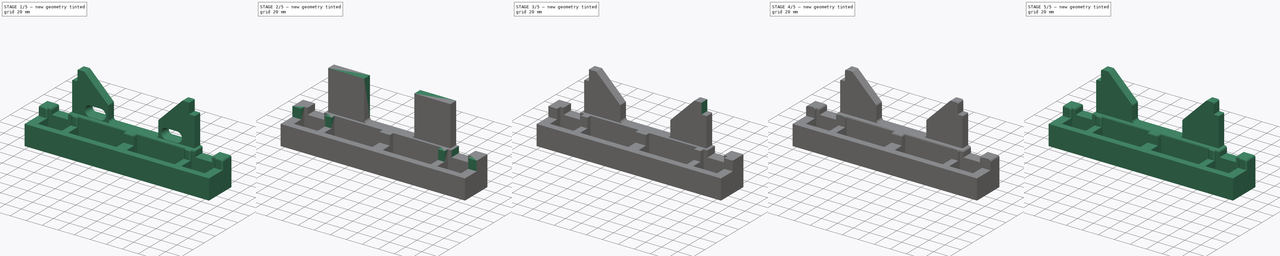
[diagram: build sequence overview — one tinted view per stage of 5, left to right]
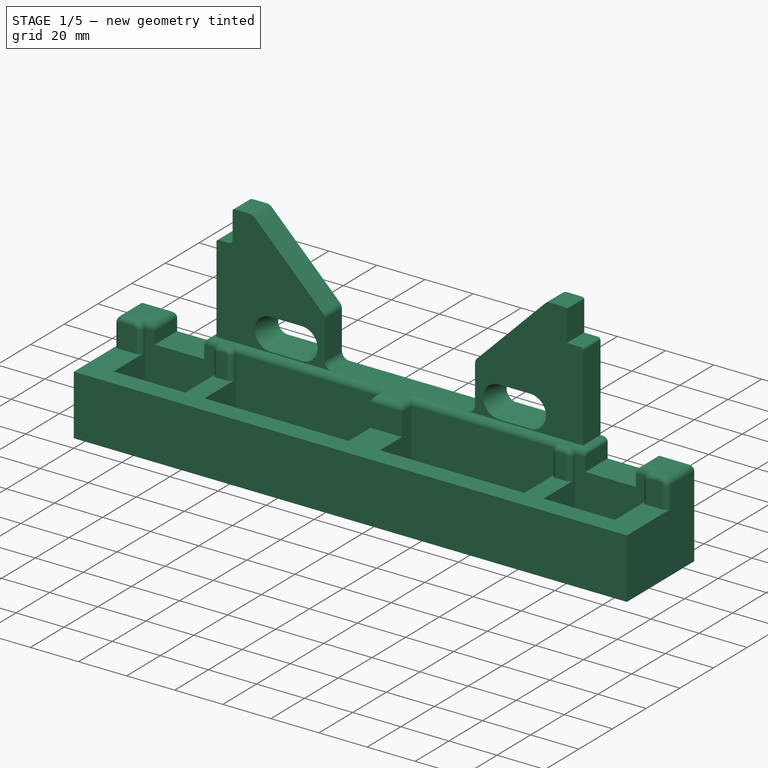
[diagram: stage 1 of 5 — iso view after this stage's code; geometry added in this stage tinted green]
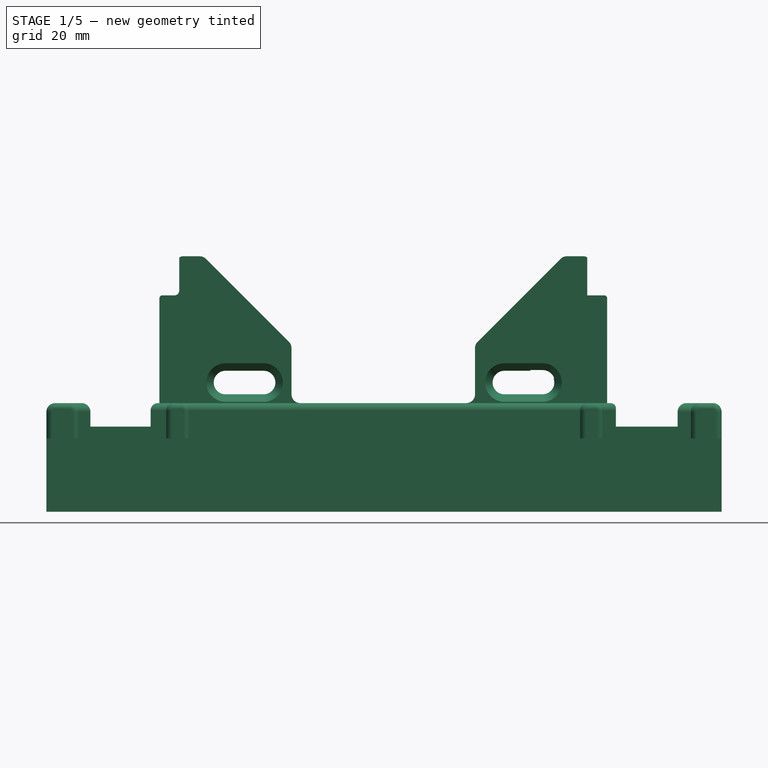
[diagram: stage 1 of 5 — front view after this stage's code; geometry added in this stage tinted green]
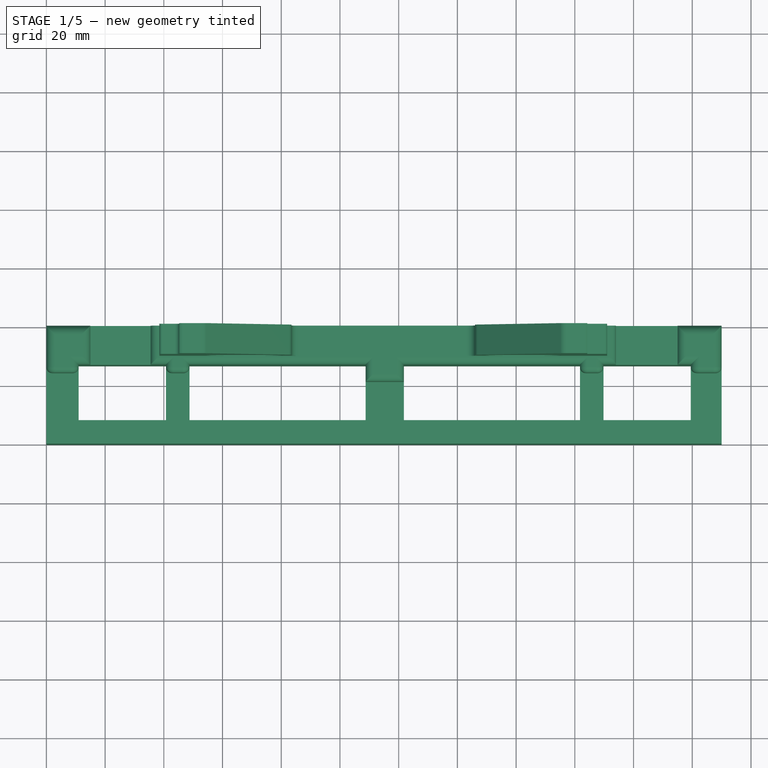
[diagram: stage 1 of 5 — top view after this stage's code; geometry added in this stage tinted green]
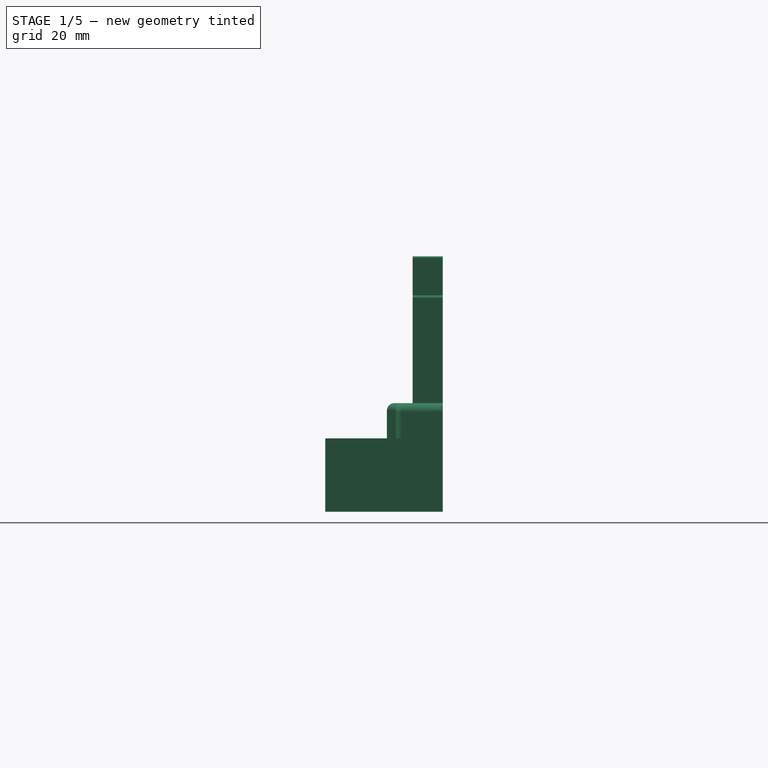
[diagram: stage 1 of 5 — right view after this stage's code; geometry added in this stage tinted green]
FCSTD DOCUMENT  (FreeCAD 0.16R5861 (Git))
Label: y_alignment_jig_v0.9.7
License: CreativeCommons Attribution-ShareAlike
LicenseURL: http://creativecommons.org/licenses/by-sa/4.0/
objects: Sketcher::SketchObject×10, PartDesign::Fillet×10, PartDesign::Pocket×8, PartDesign::Pad×2, PartDesign::Chamfer×1, Part::Feature×1, PartDesign::Draft×1
note: 43 computed .brp shape members not serialized (recipe doc carries the construction recipe); baked Part::Feature solids carry a one-line shape summary decoded from their .brp

FEATURE [Part::Feature] Fillet008001  label="Fillet009"
  shape: bbox 230 x 40 x 87 mm, 107 faces (baked)
FEATURE [Sketcher::SketchObject] Sketch008
  ExternalGeometry = -> [Fillet008001]
  Placement = pos=(0,40,0) rot=(0,0.707107,0.707107;3.14159rad)
  Support = -> Fillet008001 [Face102]
  sketch-geometry (8):
    g0: ArcOfCircle CenterX=-169 CenterY=44 CenterZ=0 NormalX=0 NormalY=0 NormalZ=1 Radius=4 StartAngle=1.5708 EndAngle=4.71239
    g1: ArcOfCircle CenterX=-156 CenterY=44 CenterZ=0 NormalX=0 NormalY=0 NormalZ=1 Radius=4 StartAngle=4.71239 EndAngle=7.85398
    g2: LineSegment StartX=-169 StartY=40 StartZ=0 EndX=-156 EndY=40 EndZ=0
    g3: LineSegment StartX=-169 StartY=48 StartZ=0 EndX=-156 EndY=48 EndZ=0
    g4: ArcOfCircle CenterX=-74 CenterY=44 CenterZ=0 NormalX=0 NormalY=0 NormalZ=1 Radius=4 StartAngle=1.5708 EndAngle=4.71239
    g5: ArcOfCircle CenterX=-61 CenterY=44 CenterZ=0 NormalX=0 NormalY=0 NormalZ=1 Radius=4 StartAngle=4.71239 EndAngle=7.85398
    g6: LineSegment StartX=-74 StartY=40 StartZ=0 EndX=-61 EndY=40 EndZ=0
    g7: LineSegment StartX=-74 StartY=48 StartZ=0 EndX=-61 EndY=48 EndZ=0
  constraints (20):
    c: Tangent(g0,g3) = 1.5708
    c: Tangent(g0,g2) = -1.5708
    c: Tangent(g2,g1) = -1.5708
    c: Tangent(g3,g1) = 1.5708
    c: Horizontal(g2)
    c: Equal(g0,g1)
    c: Tangent(g4,g7) = 1.5708
    c: Tangent(g4,g6) = -1.5708
    c: Tangent(g6,g5) = -1.5708
    c: Tangent(g7,g5) = 1.5708
    c: Horizontal(g6)
    c: Equal(g4,g5)
    c: DistanceX(g-1,g5) = -61
    c: DistanceX(g0,g-3) = -61
    c: DistanceX(g0,g1) = 13
    c: DistanceX(g4,g5) = 13
    c: DistanceY(g0,g-3) = -40
    c: DistanceY(g1,g1) = 8
    c: DistanceY(g4,g4) = -8
    c: DistanceY(g-1,g5) = 40
FEATURE [PartDesign::Pocket] Pocket006
  Length = 5
  Sketch = -> Sketch008
  Type = 1
FEATURE [PartDesign::Draft] Draft
  Angle = 14
  Base = -> Pocket006 [Face66,Face70]
  NeutralPlane = -> Pocket006 [Face11]
FEATURE [Sketcher::SketchObject] Sketch009
  ExternalGeometry = -> [Draft]
  Placement = pos=(0,40,0) rot=(0,0.707107,0.707107;3.14159rad)
  Support = -> Draft [Face11]
  sketch-geometry (12):
    g0: LineSegment StartX=-194.5 StartY=37 StartZ=0 EndX=-194 EndY=37 EndZ=0
    g1: LineSegment StartX=-194 StartY=37 StartZ=0 EndX=-194 EndY=29 EndZ=0
    g2: LineSegment StartX=-194 StartY=29 StartZ=0 EndX=-194.5 EndY=29 EndZ=0
    g3: LineSegment StartX=-194.5 StartY=29 StartZ=0 EndX=-194.5 EndY=37 EndZ=0
    g4: LineSegment StartX=-185 StartY=87 StartZ=0 EndX=-184.25 EndY=87 EndZ=0
    g5: LineSegment StartX=-184.25 StartY=87 StartZ=0 EndX=-184.25 EndY=73.7 EndZ=0
    g6: LineSegment StartX=-184.25 StartY=73.7 StartZ=0 EndX=-185 EndY=73.7 EndZ=0
    g7: LineSegment StartX=-185 StartY=73.7 StartZ=0 EndX=-185 EndY=87 EndZ=0
    g8: LineSegment StartX=-45.25 StartY=87 StartZ=0 EndX=-44.5 EndY=87 EndZ=0
    g9: LineSegment StartX=-44.5 StartY=87 StartZ=0 EndX=-44.5 EndY=73.7 EndZ=0
    g10: LineSegment StartX=-44.5 StartY=73.7 StartZ=0 EndX=-45.25 EndY=73.7 EndZ=0
    g11: LineSegment StartX=-45.25 StartY=73.7 StartZ=0 EndX=-45.25 EndY=87 EndZ=0
  constraints (35):
    c: Coincident(g0,g1)
    c: Coincident(g1,g2)
    c: Coincident(g2,g3)
    c: Coincident(g3,g0)
    c: Horizontal(g0)
    c: Horizontal(g2)
    c: Vertical(g1)
    c: Vertical(g3)
    c: DistanceX(g0,g0) = -0.5
    c: Coincident(g2,g-4)
    c: DistanceY(g-3,g0) = 0
    c: Coincident(g4,g5)
    c: Coincident(g5,g6)
    c: Coincident(g6,g7)
    c: Coincident(g7,g4)
    c: Horizontal(g4)
    c: Horizontal(g6)
    c: Vertical(g5)
    c: Vertical(g7)
    c: Coincident(g8,g9)
    c: Coincident(g9,g10)
    c: Coincident(g10,g11)
    c: Coincident(g11,g8)
    c: Horizontal(g8)
    c: Horizontal(g10)
    c: Vertical(g9)
    c: Vertical(g11)
    c: PointOnObject(g-7,g8)
    c: PointOnObject(g-6,g4)
    c: PointOnObject(g-5,g6)
    c: PointOnObject(g-8,g10)
    c: Coincident(g6,g-5)
    c: Coincident(g9,g-8)
    c: DistanceX(g5,g6) = -0.75
    c: DistanceX(g10,g9) = 0.75
FEATURE [PartDesign::Pocket] Pocket007
  Length = 5
  Sketch = -> Sketch009
  Type = 1
FEATURE [PartDesign::Fillet] Fillet008002
  Base = -> Pocket007 [Edge185,Edge43,Edge228]
  Radius = 1.6
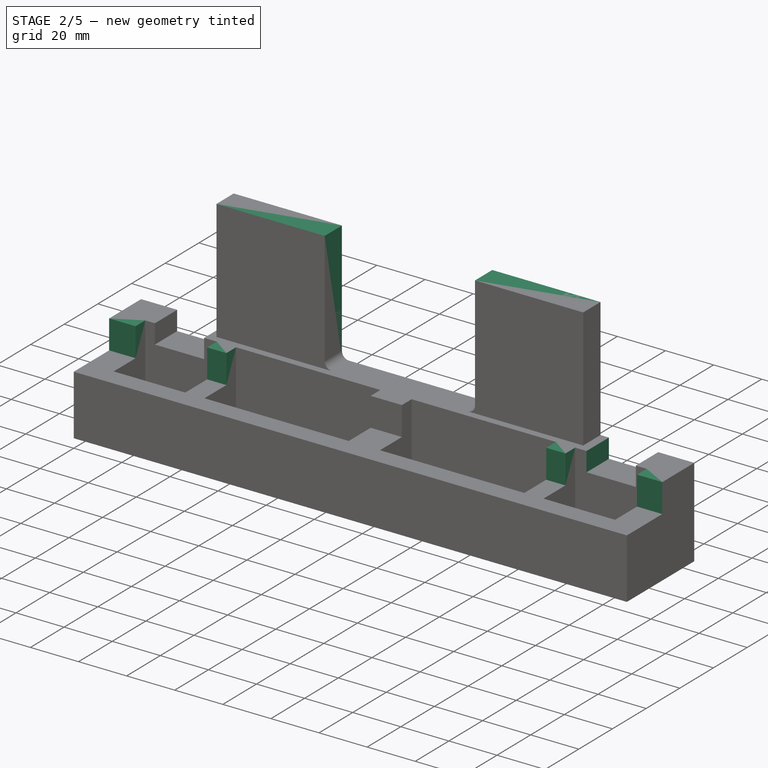
[diagram: stage 2 of 5 — iso view after this stage's code; geometry added in this stage tinted green]
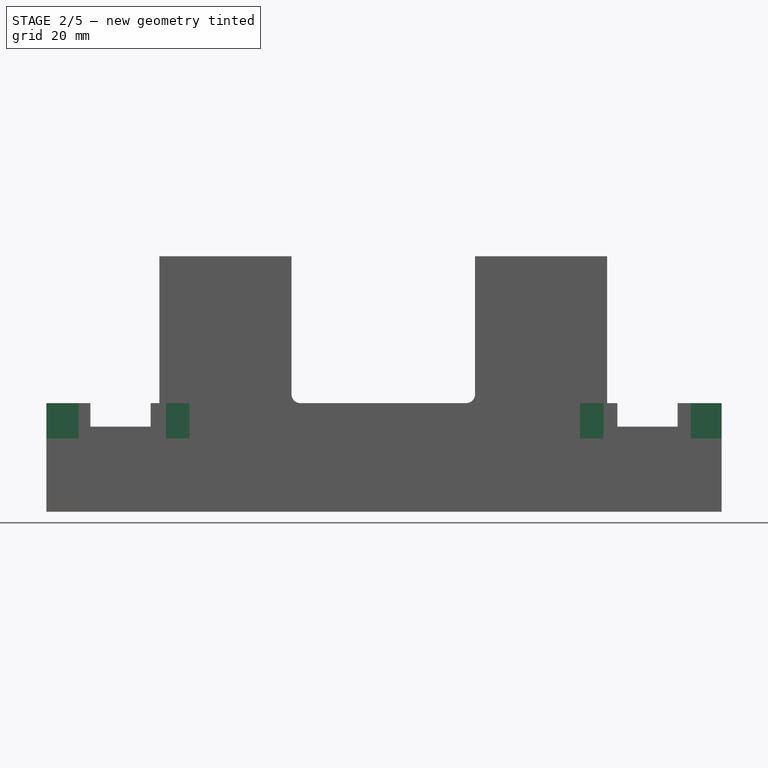
[diagram: stage 2 of 5 — front view after this stage's code; geometry added in this stage tinted green]
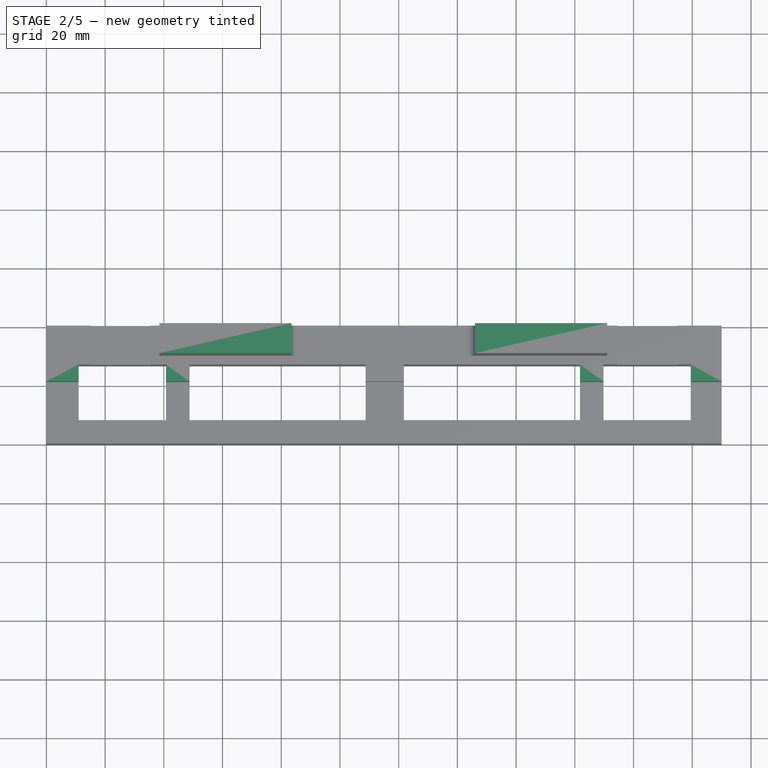
[diagram: stage 2 of 5 — top view after this stage's code; geometry added in this stage tinted green]
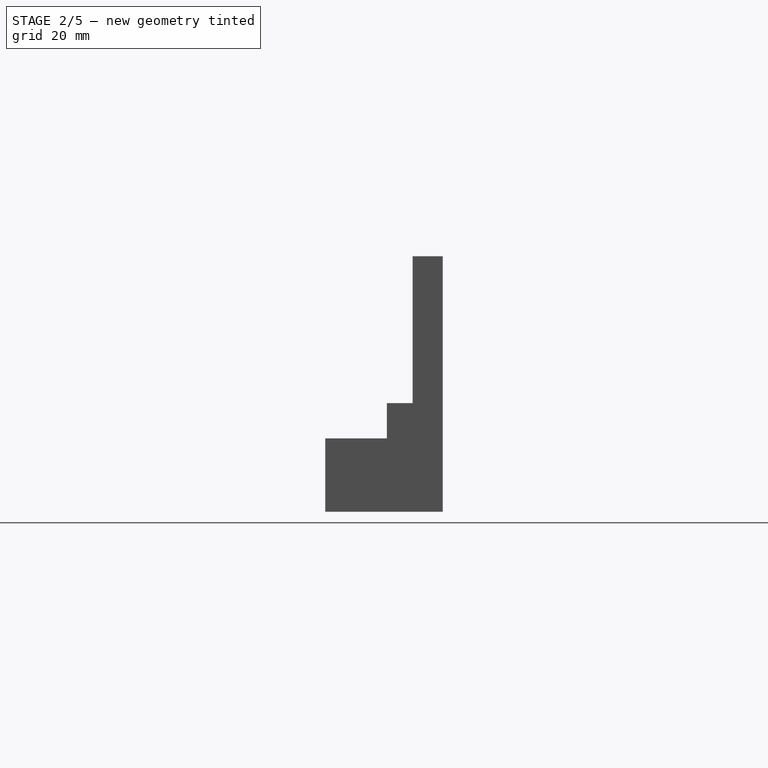
[diagram: stage 2 of 5 — right view after this stage's code; geometry added in this stage tinted green]
FEATURE [Sketcher::SketchObject] Sketch  label="main pad dwg"
  sketch-geometry (4):
    g0: LineSegment StartX=0 StartY=0 StartZ=0 EndX=230 EndY=0 EndZ=0
    g1: LineSegment StartX=230 StartY=0 StartZ=0 EndX=230 EndY=40 EndZ=0
    g2: LineSegment StartX=230 StartY=40 StartZ=0 EndX=0 EndY=40 EndZ=0
    g3: LineSegment StartX=0 StartY=40 StartZ=0 EndX=0 EndY=0 EndZ=0
  constraints (11):
    c: Coincident(g0,g1)
    c: Coincident(g1,g2)
    c: Coincident(g2,g3)
    c: Coincident(g3,g0)
    c: Horizontal(g0)
    c: Horizontal(g2)
    c: Vertical(g1)
    c: Vertical(g3)
    c: Coincident(g0,g-1)
    c: DistanceX(g0) = 230
    c: DistanceY(g3) = -40
FEATURE [PartDesign::Pad] Pad  label="main Pad"
  Length = 37
  Length2 = 100
  Sketch = -> Sketch
  Type = 0
FEATURE [Sketcher::SketchObject] Sketch001  label="foot relief dwg"
  Placement = pos=(0,0,37) rot=(0,0,1;0rad)
  Support = -> Pad [Face6]
  sketch-geometry (16):
    g0: LineSegment StartX=11 StartY=26.75 StartZ=0 EndX=40.75 EndY=26.75 EndZ=0
    g1: LineSegment StartX=40.75 StartY=26.75 StartZ=0 EndX=40.75 EndY=8 EndZ=0
    g2: LineSegment StartX=40.75 StartY=8 StartZ=0 EndX=11 EndY=8 EndZ=0
    g3: LineSegment StartX=11 StartY=8 StartZ=0 EndX=11 EndY=26.75 EndZ=0
    g4: LineSegment StartX=48.75 StartY=26.75 StartZ=0 EndX=108.75 EndY=26.75 EndZ=0
    g5: LineSegment StartX=108.75 StartY=26.75 StartZ=0 EndX=108.75 EndY=8 EndZ=0
    g6: LineSegment StartX=108.75 StartY=8 StartZ=0 EndX=48.75 EndY=8 EndZ=0
    g7: LineSegment StartX=48.75 StartY=8 StartZ=0 EndX=48.75 EndY=26.75 EndZ=0
    g8: LineSegment StartX=121.75 StartY=26.75 StartZ=0 EndX=181.75 EndY=26.75 EndZ=0
    g9: LineSegment StartX=181.75 StartY=26.75 StartZ=0 EndX=181.75 EndY=8 EndZ=0
    g10: LineSegment StartX=181.75 StartY=8 StartZ=0 EndX=121.75 EndY=8 EndZ=0
    g11: LineSegment StartX=121.75 StartY=8 StartZ=0 EndX=121.75 EndY=26.75 EndZ=0
    g12: LineSegment StartX=189.75 StartY=26.75 StartZ=0 EndX=219.5 EndY=26.75 EndZ=0
    g13: LineSegment StartX=219.5 StartY=26.75 StartZ=0 EndX=219.5 EndY=8 EndZ=0
    g14: LineSegment StartX=219.5 StartY=8 StartZ=0 EndX=189.75 EndY=8 EndZ=0
    g15: LineSegment StartX=189.75 StartY=8 StartZ=0 EndX=189.75 EndY=26.75 EndZ=0
  constraints (48):
    c: Coincident(g0,g1)
    c: Coincident(g1,g2)
    c: Coincident(g2,g3)
    c: Coincident(g3,g0)
    c: Horizontal(g0)
    c: Horizontal(g2)
    c: Vertical(g1)
    c: Vertical(g3)
    c: Coincident(g4,g5)
    c: Coincident(g5,g6)
    c: Coincident(g6,g7)
    c: Coincident(g7,g4)
    c: Horizontal(g4)
    c: Horizontal(g6)
    c: Vertical(g5)
    c: Vertical(g7)
    c: Coincident(g8,g9)
    c: Coincident(g9,g10)
    c: Coincident(g10,g11)
    c: Coincident(g11,g8)
    c: Horizontal(g8)
    c: Horizontal(g10)
    c: Vertical(g9)
    c: Vertical(g11)
    c: Coincident(g12,g13)
    c: Coincident(g13,g14)
    c: Coincident(g14,g15)
    c: Coincident(g15,g12)
    c: Horizontal(g12)
    c: Horizontal(g14)
    c: Vertical(g13)
    c: Vertical(g15)
    c: DistanceX(g-1,g2) = 11
    c: DistanceY(g-1,g2) = 8
    c: DistanceX(g2) = -29.75
    c: DistanceY(g3) = 18.75
    c: DistanceY(g6,g1) = 0
    c: DistanceY(g5,g10) = 0
    c: DistanceY(g9,g14) = 0
    c: DistanceX(g6) = -60
    c: DistanceX(g10) = -60
    c: DistanceX(g14) = -29.75
    c: DistanceX(g6,g1) = -8
    c: DistanceX(g9,g14) = 8
    c: DistanceX(g10,g5) = -13
    c: DistanceY(g4,g0) = 0
    c: DistanceY(g4,g8) = 0
    c: DistanceY(g8,g12) = 0
FEATURE [PartDesign::Pocket] Pocket  label="foot relief Pocket"
  Length = 5
  Sketch = -> Sketch001
  Type = 1
FEATURE [Sketcher::SketchObject] Sketch002  label="end plate relief dwg"
  Placement = pos=(230,0,0) rot=(0.57735,0.57735,0.57735;2.0944rad)
  Support = -> Pocket [Face3]
  sketch-geometry (4):
    g0: LineSegment StartX=0 StartY=37 StartZ=0 EndX=21 EndY=37 EndZ=0
    g1: LineSegment StartX=21 StartY=37 StartZ=0 EndX=21 EndY=25 EndZ=0
    g2: LineSegment StartX=21 StartY=25 StartZ=0 EndX=0 EndY=25 EndZ=0
    g3: LineSegment StartX=0 StartY=25 StartZ=0 EndX=0 EndY=37 EndZ=0
  constraints (12):
    c: Coincident(g0,g1)
    c: Coincident(g1,g2)
    c: Coincident(g2,g3)
    c: Coincident(g3,g0)
    c: Horizontal(g0)
    c: Horizontal(g2)
    c: Vertical(g1)
    c: Vertical(g3)
    c: PointOnObject(g0,g-2)
    c: DistanceY(g3) = 12
    c: DistanceX(g0) = 21
    c: DistanceY(g-1,g2) = 25
FEATURE [PartDesign::Pocket] Pocket001  label="end plate relief"
  Length = 5
  Sketch = -> Sketch002
  Type = 1
FEATURE [Sketcher::SketchObject] Sketch003  label="alum. strut relief dwg"
  Placement = pos=(0,0,37) rot=(0,0,1;0rad)
  Support = -> Pocket001 [Face23]
  sketch-geometry (8):
    g0: LineSegment StartX=15 StartY=40 StartZ=0 EndX=35.5 EndY=40 EndZ=0
    g1: LineSegment StartX=35.5 StartY=40 StartZ=0 EndX=35.5 EndY=26.75 EndZ=0
    g2: LineSegment StartX=35.5 StartY=26.75 StartZ=0 EndX=15 EndY=26.75 EndZ=0
    g3: LineSegment StartX=15 StartY=26.75 StartZ=0 EndX=15 EndY=40 EndZ=0
    g4: LineSegment StartX=194.5 StartY=26.75 StartZ=0 EndX=215 EndY=26.75 EndZ=0
    g5: LineSegment StartX=215 StartY=26.75 StartZ=0 EndX=215 EndY=40 EndZ=0
    g6: LineSegment StartX=215 StartY=40 StartZ=0 EndX=194.5 EndY=40 EndZ=0
    g7: LineSegment StartX=194.5 StartY=40 StartZ=0 EndX=194.5 EndY=26.75 EndZ=0
  constraints (24):
    c: Coincident(g0,g1)
    c: Coincident(g1,g2)
    c: Coincident(g2,g3)
    c: Coincident(g3,g0)
    c: Horizontal(g0)
    c: Horizontal(g2)
    c: Vertical(g1)
    c: Vertical(g3)
    c: Coincident(g4,g5)
    c: Coincident(g5,g6)
    c: Coincident(g6,g7)
    c: Coincident(g7,g4)
    c: Horizontal(g4)
    c: Horizontal(g6)
    c: Vertical(g5)
    c: Vertical(g7)
    c: DistanceX(g-1,g0) = 15
    c: DistanceY(g3) = 13.25
    c: DistanceY(g-1,g2) = 26.75
    c: DistanceX(g0) = 20.5
    c: DistanceX(g6) = -20.5
    c: DistanceY(g4,g1) = 0
    c: DistanceX(g6,g0) = -159
    c: DistanceY(g5) = 13.25
FEATURE [PartDesign::Pocket] Pocket002  label="alum. strut relief"
  Length = 8
  Sketch = -> Sketch003
  Type = 0
FEATURE [Sketcher::SketchObject] Sketch004  label="guide rod support dwg"
  Placement = pos=(0,0,37) rot=(0,0,1;0rad)
  Support = -> Pocket002 [Face33]
  sketch-geometry (8):
    g0: LineSegment StartX=38.5 StartY=40 StartZ=0 EndX=83.5 EndY=40 EndZ=0
    g1: LineSegment StartX=83.5 StartY=40 StartZ=0 EndX=83.5 EndY=29.75 EndZ=0
    g2: LineSegment StartX=83.5 StartY=29.75 StartZ=0 EndX=38.5 EndY=29.75 EndZ=0
    g3: LineSegment StartX=38.5 StartY=29.75 StartZ=0 EndX=38.5 EndY=40 EndZ=0
    g4: LineSegment StartX=146 StartY=40 StartZ=0 EndX=191 EndY=40 EndZ=0
    g5: LineSegment StartX=191 StartY=40 StartZ=0 EndX=191 EndY=29.75 EndZ=0
    g6: LineSegment StartX=191 StartY=29.75 StartZ=0 EndX=146 EndY=29.75 EndZ=0
    g7: LineSegment StartX=146 StartY=29.75 StartZ=0 EndX=146 EndY=40 EndZ=0
  constraints (24):
    c: Coincident(g0,g1)
    c: Coincident(g1,g2)
    c: Coincident(g2,g3)
    c: Coincident(g3,g0)
    c: Horizontal(g0)
    c: Horizontal(g2)
    c: Vertical(g1)
    c: Vertical(g3)
    c: Coincident(g4,g5)
    c: Coincident(g5,g6)
    c: Coincident(g6,g7)
    c: Coincident(g7,g4)
    c: Horizontal(g4)
    c: Horizontal(g6)
    c: Vertical(g5)
    c: Vertical(g7)
    c: DistanceX(g0) = 45
    c: DistanceY(g4,g0) = 0
    c: DistanceX(g4,g4) = -45
    c: DistanceX(g4,g0) = -62.5
    c: DistanceY(g3) = 10.25
    c: DistanceY(g-1,g2) = 29.75
    c: DistanceY(g5) = -10.25
    c: DistanceX(g-1,g0) = 38.5
FEATURE [PartDesign::Pad] Pad001  label="guide rod support"
  Length = 50
  Length2 = 100
  Sketch = -> Sketch004
  Type = 0
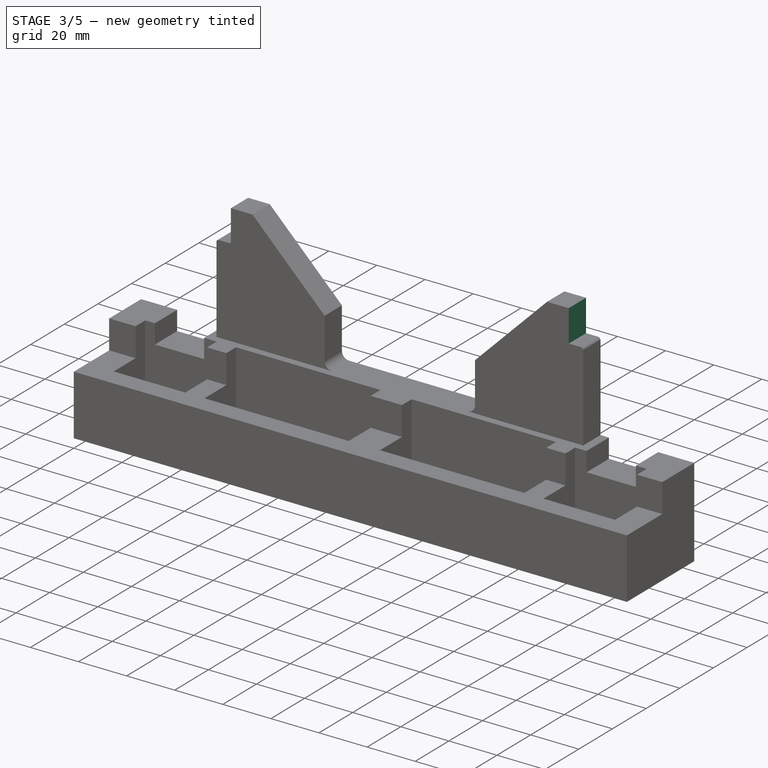
[diagram: stage 3 of 5 — iso view after this stage's code; geometry added in this stage tinted green]
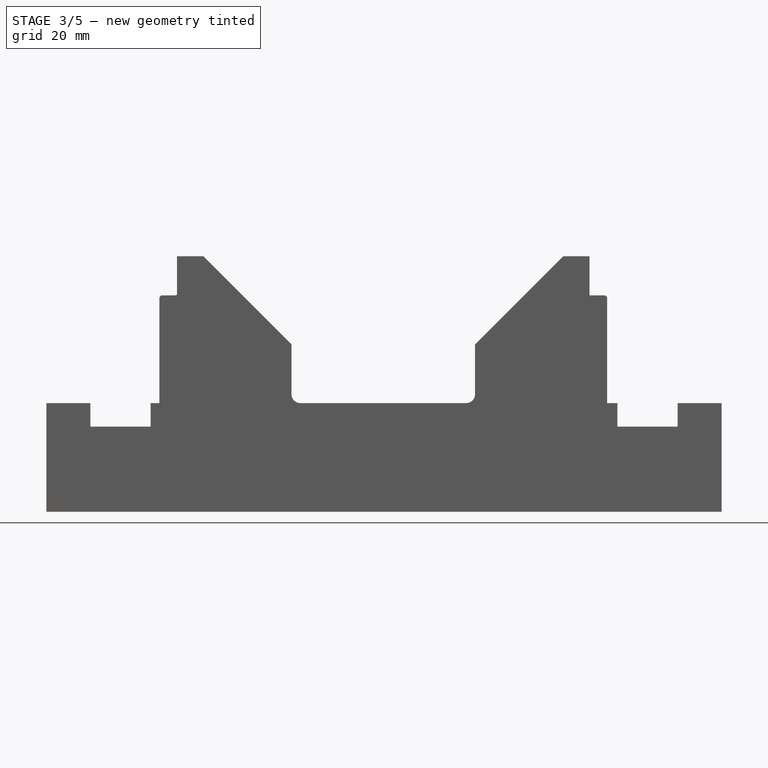
[diagram: stage 3 of 5 — front view after this stage's code; geometry added in this stage tinted green]
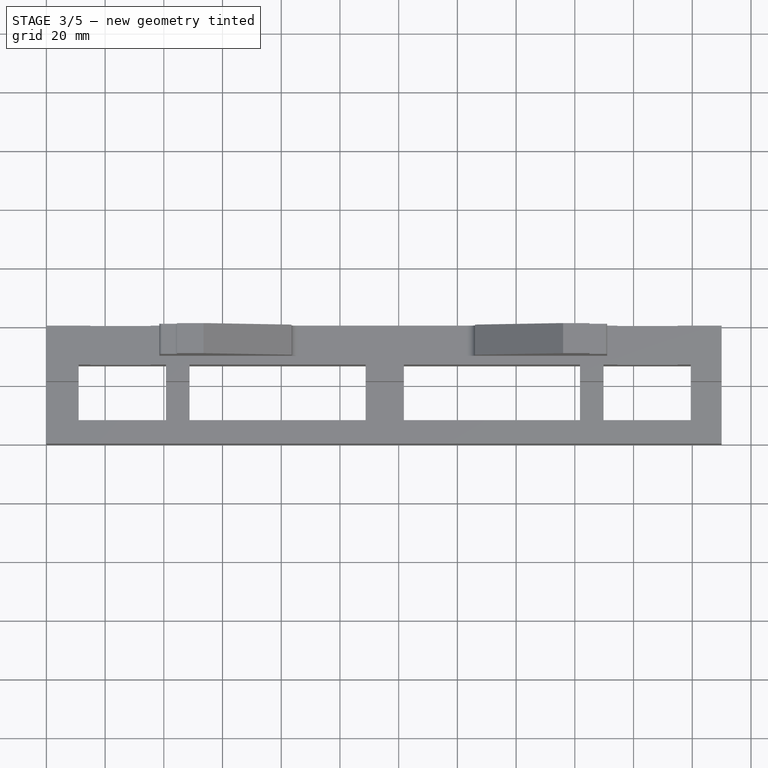
[diagram: stage 3 of 5 — top view after this stage's code; geometry added in this stage tinted green]
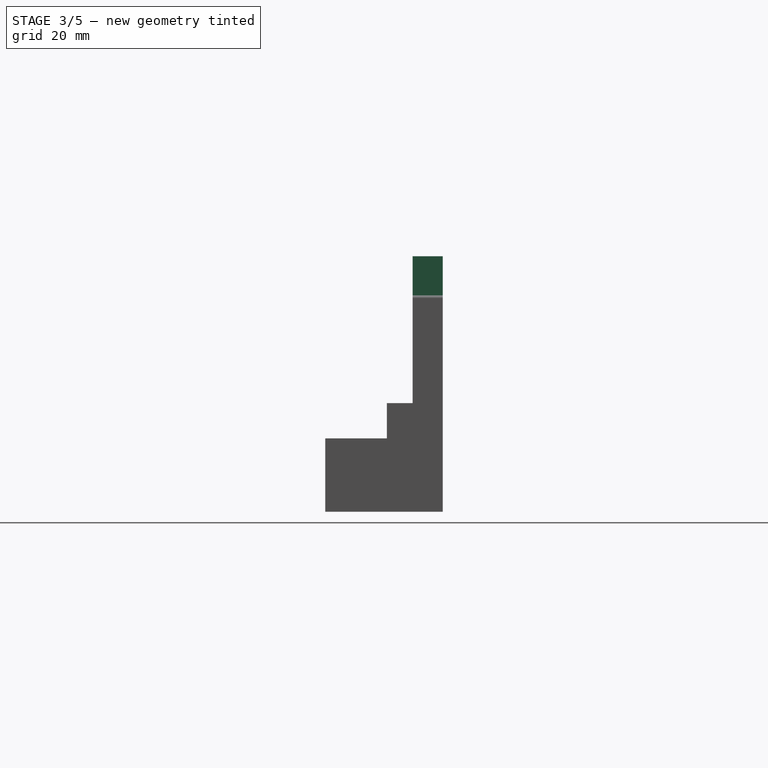
[diagram: stage 3 of 5 — right view after this stage's code; geometry added in this stage tinted green]
FEATURE [Sketcher::SketchObject] Sketch005  label="guide rod relief cut dwg"
  ExternalGeometry = -> [Pad001]
  Placement = pos=(0,40,0) rot=(0,0.707107,0.707107;3.14159rad)
  Support = -> Pad001 [Face37]
  sketch-geometry (8):
    g0: LineSegment StartX=-38.5 StartY=87 StartZ=0 EndX=-44.5 EndY=87 EndZ=0
    g1: LineSegment StartX=-44.5 StartY=87 StartZ=0 EndX=-44.5 EndY=73.7 EndZ=0
    g2: LineSegment StartX=-44.5 StartY=73.7 StartZ=0 EndX=-38.5 EndY=73.7 EndZ=0
    g3: LineSegment StartX=-38.5 StartY=73.7 StartZ=0 EndX=-38.5 EndY=87 EndZ=0
    g4: LineSegment StartX=-185 StartY=87 StartZ=0 EndX=-191 EndY=87 EndZ=0
    g5: LineSegment StartX=-191 StartY=87 StartZ=0 EndX=-191 EndY=73.7 EndZ=0
    g6: LineSegment StartX=-191 StartY=73.7 StartZ=0 EndX=-185 EndY=73.7 EndZ=0
    g7: LineSegment StartX=-185 StartY=73.7 StartZ=0 EndX=-185 EndY=87 EndZ=0
  constraints (24):
    c: Coincident(g0,g1)
    c: Coincident(g1,g2)
    c: Coincident(g2,g3)
    c: Coincident(g3,g0)
    c: Horizontal(g0)
    c: Horizontal(g2)
    c: Vertical(g1)
    c: Vertical(g3)
    c: Coincident(g4,g5)
    c: Coincident(g5,g6)
    c: Coincident(g6,g7)
    c: Coincident(g7,g4)
    c: Horizontal(g4)
    c: Horizontal(g6)
    c: Vertical(g5)
    c: Vertical(g7)
    c: DistanceY(g3) = 13.3
    c: DistanceY(g5) = -13.3
    c: DistanceX(g4,g0) = 140.5
    c: DistanceY(g6,g1) = 0
    c: DistanceX(g-1,g2) = -38.5
    c: DistanceX(g0,g0) = -6
    c: DistanceX(g4,g4) = 6
    c: Coincident(g0,g-3)
FEATURE [PartDesign::Pocket] Pocket003  label="guide rod relief cut"
  Length = 5
  Sketch = -> Sketch005
  Type = 1
FEATURE [PartDesign::Chamfer] Chamfer  label="bracket relief Chamfer"
  Base = -> Pocket003 [Edge142,Edge141]
  Size = 30
FEATURE [Sketcher::SketchObject] Sketch006  label="index dwg"
  Placement = pos=(0,40,0) rot=(0,0.707107,0.707107;3.14159rad)
  Support = -> Chamfer [Face1]
  sketch-geometry (2):
    g0: Circle CenterX=-171.719 CenterY=55.3998 CenterZ=0 NormalX=0 NormalY=0 NormalZ=1 Radius=10
    g1: Circle CenterX=-58 CenterY=56.3922 CenterZ=0 NormalX=0 NormalY=0 NormalZ=1 Radius=7
  constraints (2):
    c: Radius(g1) = 7
    c: Radius(g0) = 10
FEATURE [PartDesign::Pocket] Pocket004
  Length = 1
  Sketch = -> Sketch006
  Type = 0
FEATURE [PartDesign::Fillet] Fillet
  Base = -> Pocket004 [Edge117,Edge19]
  Radius = 1
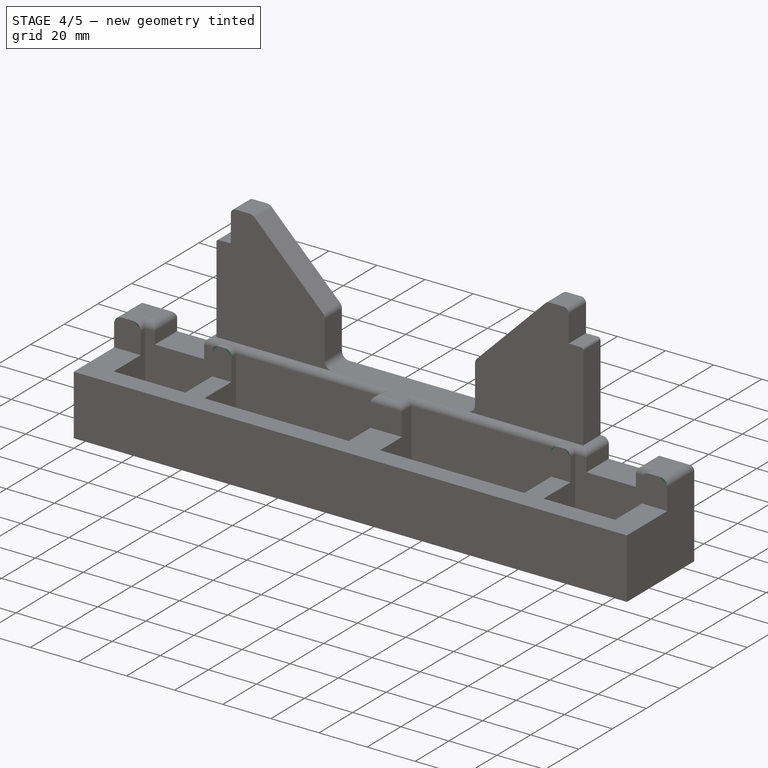
[diagram: stage 4 of 5 — iso view after this stage's code; geometry added in this stage tinted green]
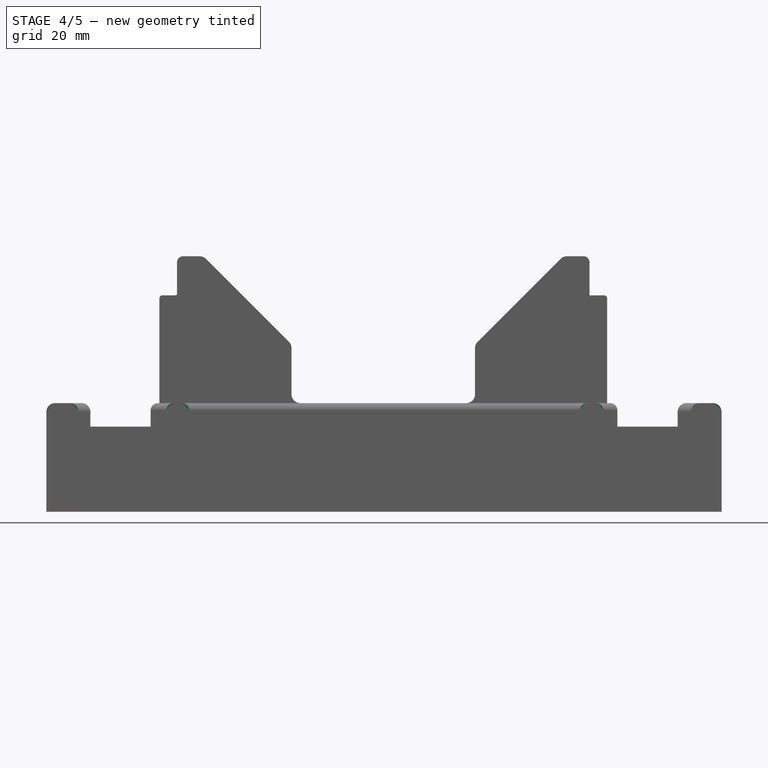
[diagram: stage 4 of 5 — front view after this stage's code; geometry added in this stage tinted green]
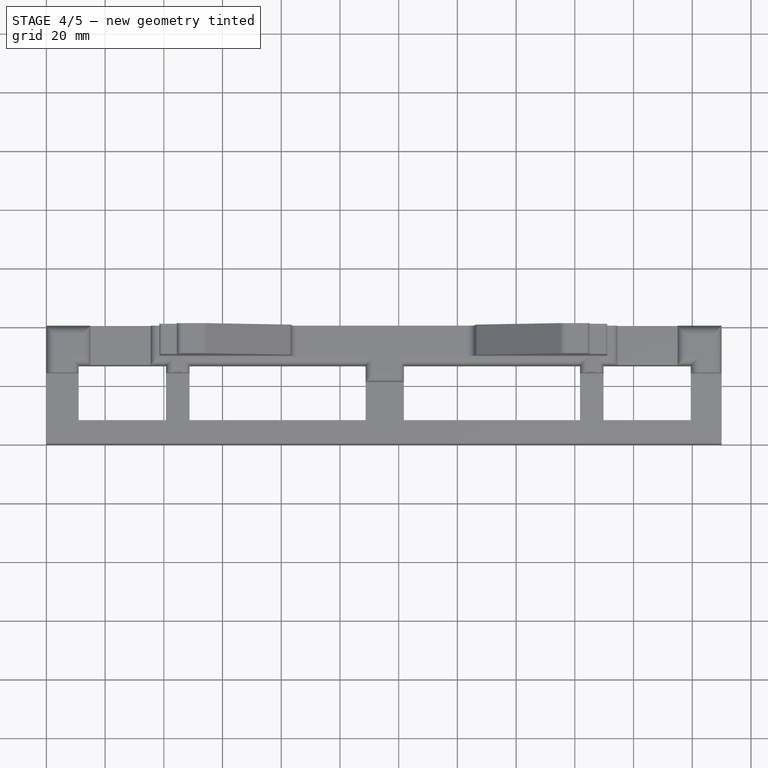
[diagram: stage 4 of 5 — top view after this stage's code; geometry added in this stage tinted green]
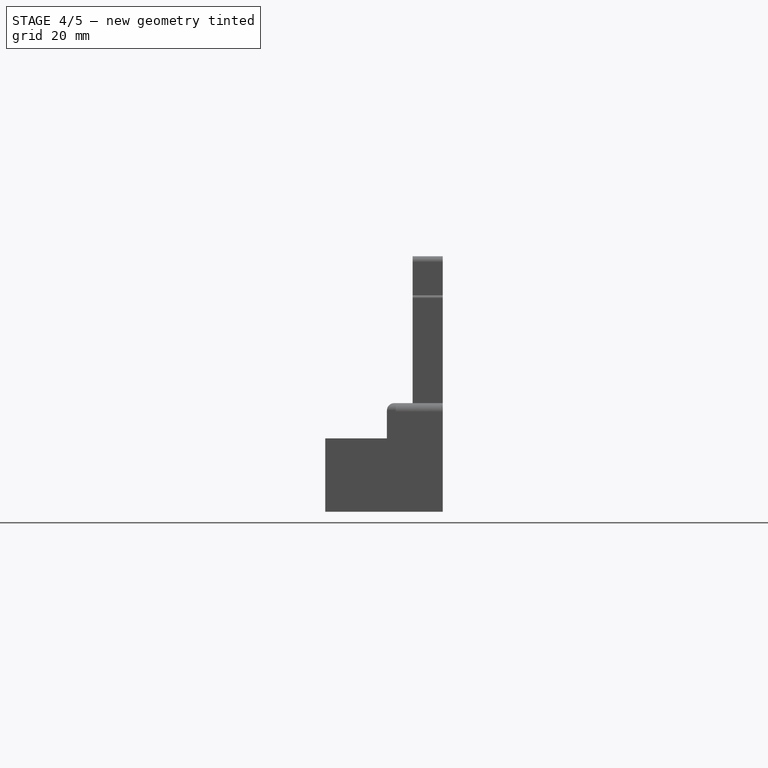
[diagram: stage 4 of 5 — right view after this stage's code; geometry added in this stage tinted green]
FEATURE [PartDesign::Fillet] Fillet001
  Base = -> Fillet [Edge25,Edge87,Edge92,Edge93,Edge94,Edge95,Edge80,Edge24,Edge88,Edge89,Edge90,Edge91]
  Radius = 3
FEATURE [PartDesign::Fillet] Fillet002
  Base = -> Fillet001 [Edge187,Edge181]
  Radius = 2
FEATURE [PartDesign::Fillet] Fillet003
  Base = -> Fillet002 [Edge49,Edge63,Edge62,Edge61,Edge60,Edge59,Edge58,Edge57,Edge56,Edge55,Edge54,Edge53,Edge52,Edge50,Edge51]
  Radius = 2.5
FEATURE [PartDesign::Fillet] Fillet004
  Base = -> Fillet003 [Edge30,Edge123,Edge128,Edge33,Edge193,Edge161]
  Radius = 3
FEATURE [Sketcher::SketchObject] Sketch007
  ExternalGeometry = -> [Fillet004]
  Placement = pos=(0,0,37) rot=(0,0,1;0rad)
  Support = -> Fillet004 [Face2]
  sketch-geometry (8):
    g0: LineSegment StartX=230 StartY=21 StartZ=0 EndX=181.75 EndY=21 EndZ=0
    g1: LineSegment StartX=181.75 StartY=21 StartZ=0 EndX=181.75 EndY=24 EndZ=0
    g2: LineSegment StartX=181.75 StartY=24 StartZ=0 EndX=230 EndY=24 EndZ=0
    g3: LineSegment StartX=230 StartY=24 StartZ=0 EndX=230 EndY=21 EndZ=0
    g4: LineSegment StartX=48.75 StartY=21 StartZ=0 EndX=0 EndY=21 EndZ=0
    g5: LineSegment StartX=0 StartY=21 StartZ=0 EndX=0 EndY=24 EndZ=0
    g6: LineSegment StartX=0 StartY=24 StartZ=0 EndX=48.75 EndY=24 EndZ=0
    g7: LineSegment StartX=48.75 StartY=24 StartZ=0 EndX=48.75 EndY=21 EndZ=0
  constraints (23):
    c: Coincident(g0,g1)
    c: Coincident(g1,g2)
    c: Coincident(g2,g3)
    c: Coincident(g3,g0)
    c: Horizontal(g0)
    c: Horizontal(g2)
    c: Vertical(g1)
    c: Vertical(g3)
    c: PointOnObject(g1,g-3)
    c: Coincident(g4,g5)
    c: Coincident(g5,g6)
    c: Coincident(g6,g7)
    c: Coincident(g7,g4)
    c: Horizontal(g4)
    c: Horizontal(g6)
    c: Vertical(g5)
    c: Vertical(g7)
    c: DistanceY(g7) = -3
    c: DistanceY(g3) = -3
    c: Coincident(g4,g-4)
    c: Coincident(g4,g-5)
    c: Coincident(g0,g-3)
    c: Coincident(g-6,g0)
FEATURE [PartDesign::Pocket] Pocket005  label="M5BHCS clearence"
  Length = 12
  Sketch = -> Sketch007
  Type = 0
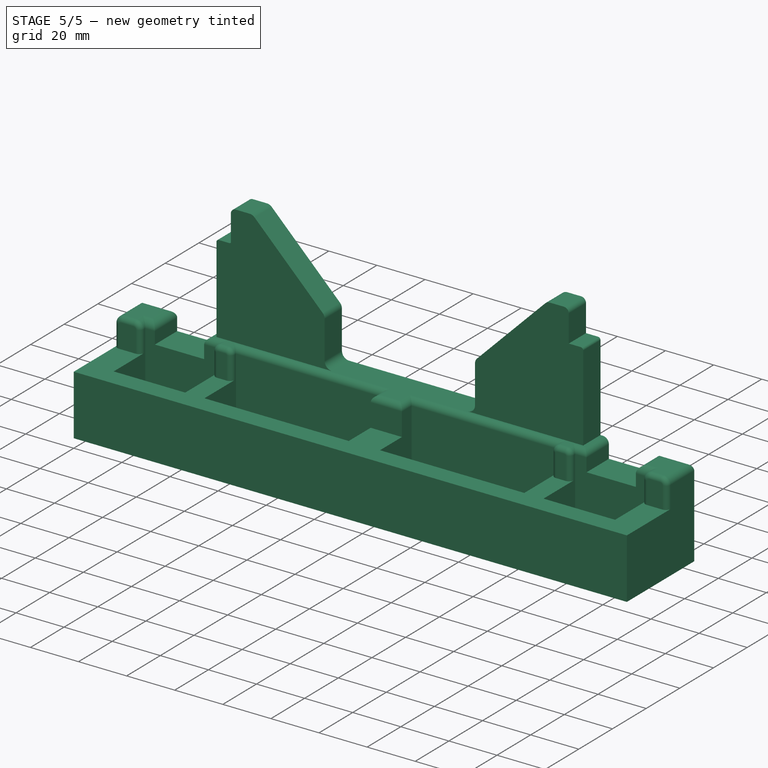
[diagram: stage 5 of 5 — iso view after this stage's code; geometry added in this stage tinted green]
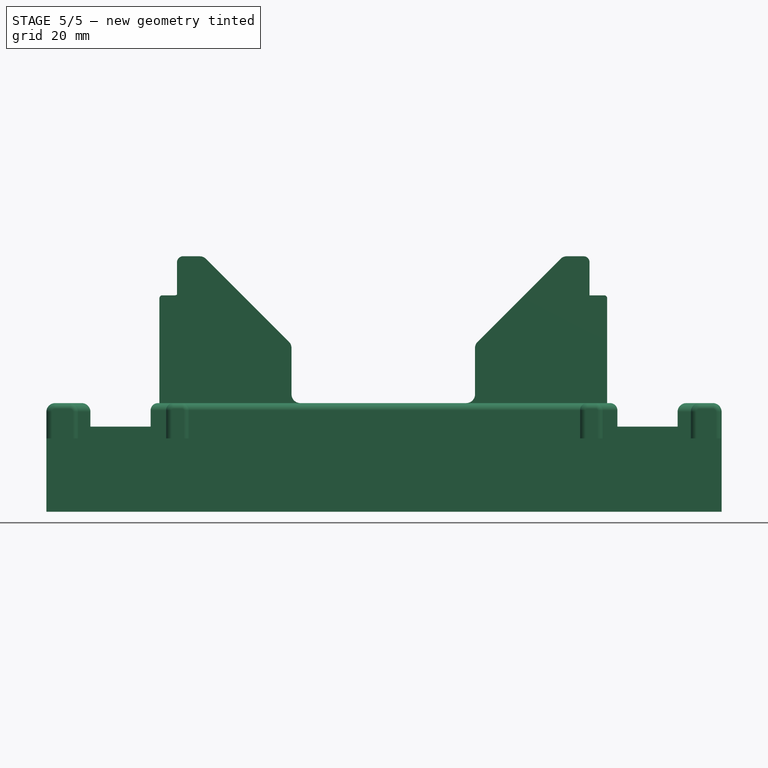
[diagram: stage 5 of 5 — front view after this stage's code; geometry added in this stage tinted green]
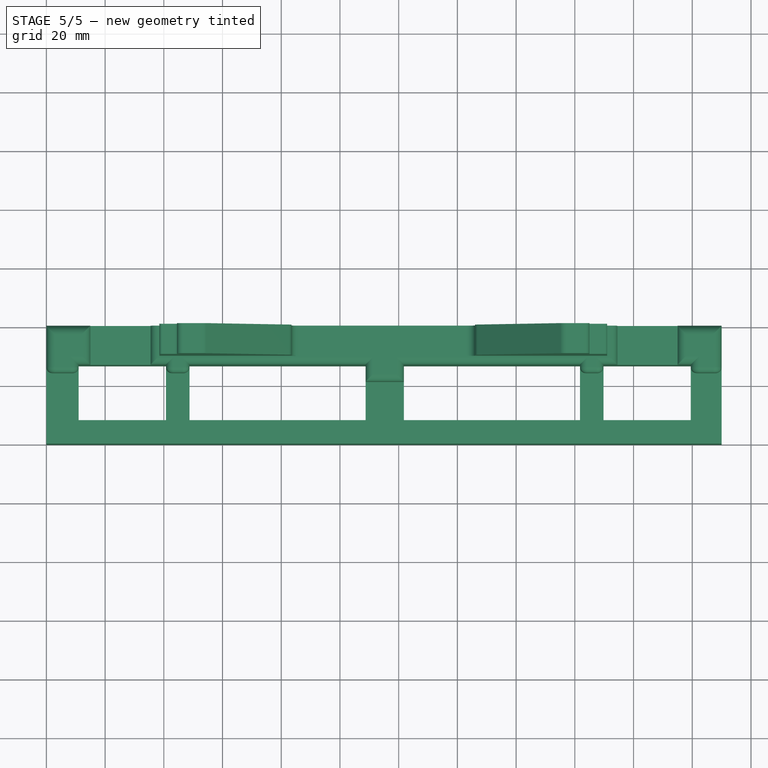
[diagram: stage 5 of 5 — top view after this stage's code; geometry added in this stage tinted green]
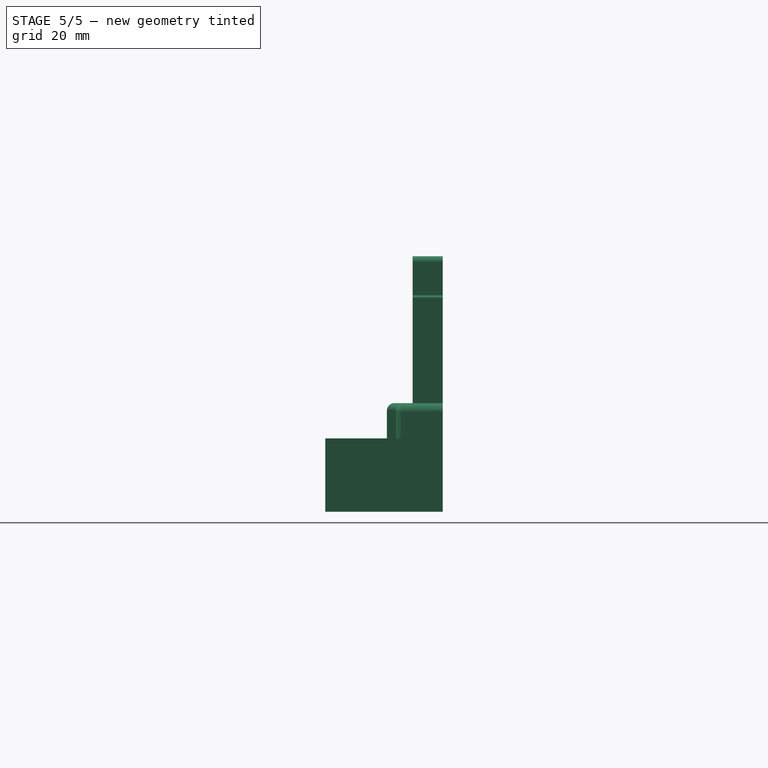
[diagram: stage 5 of 5 — right view after this stage's code; geometry added in this stage tinted green]
FEATURE [PartDesign::Fillet] Fillet005
  Base = -> Pocket005 [Edge137,Edge135]
  Radius = 2
FEATURE [PartDesign::Fillet] Fillet006
  Base = -> Fillet005 [Edge86,Edge81,Edge18,Edge83,Edge84]
  Radius = 2
FEATURE [PartDesign::Fillet] Fillet007
  Base = -> Fillet006 [Edge270,Edge268,Edge182,Edge278,Edge259]
  Radius = 2
FEATURE [PartDesign::Fillet] Fillet008
  Base = -> Fillet007 [Edge287,Edge189,Edge284,Edge286,Edge154]
  Radius = 2
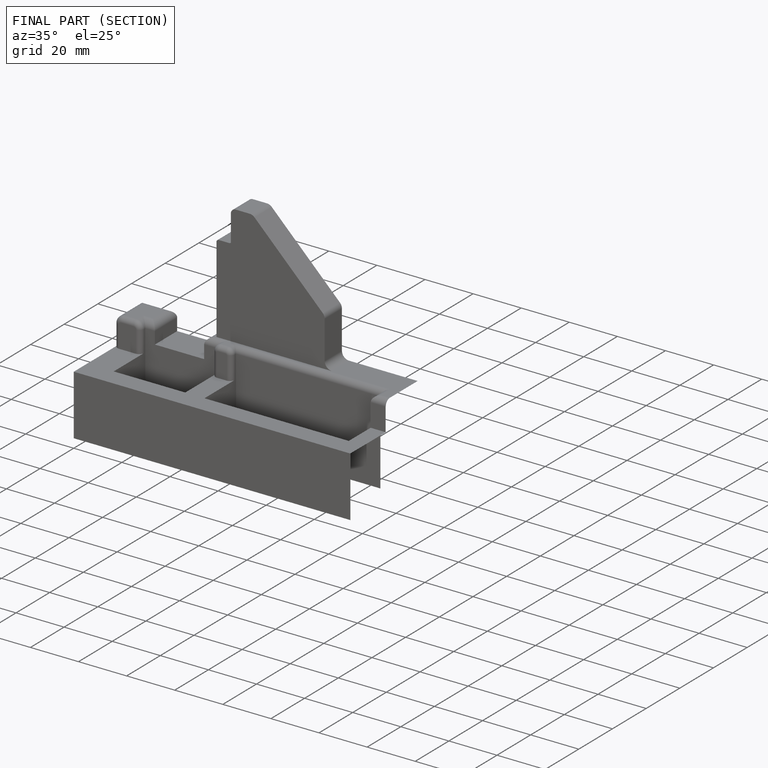
[diagram: finished part — half-section view (interior)]
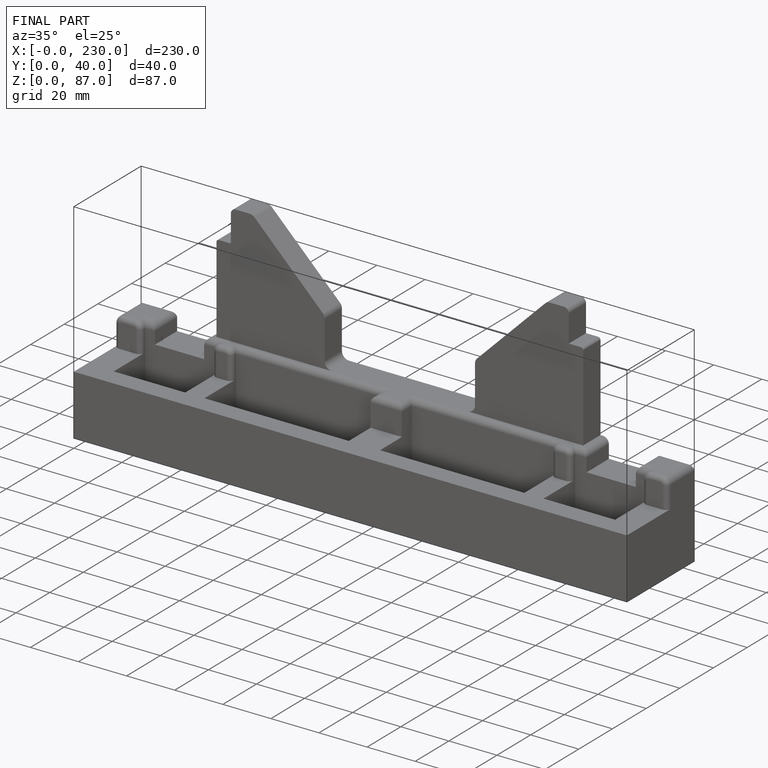
[diagram: finished part — iso view with bounding-box wireframe]
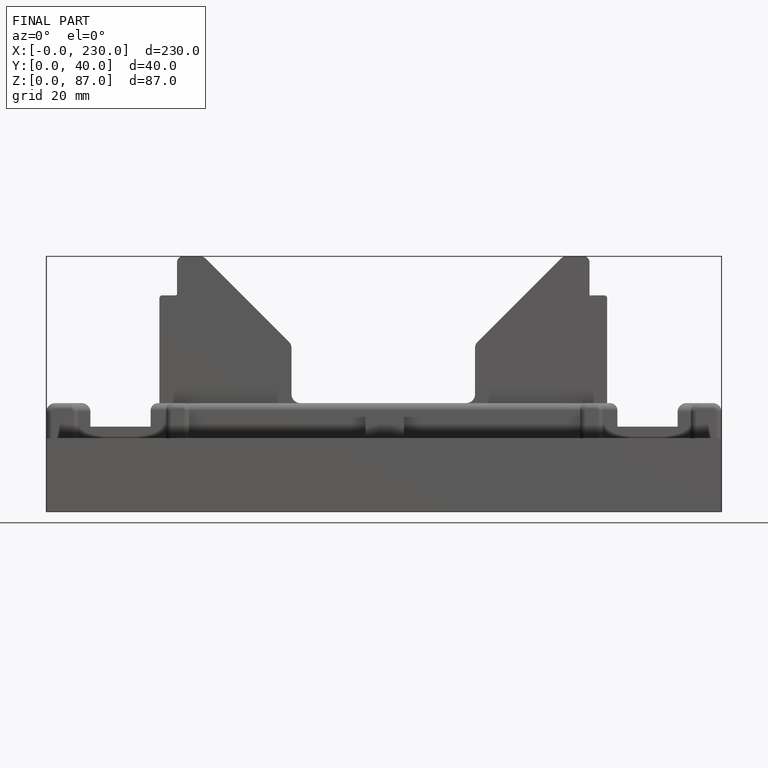
[diagram: finished part — front view with bounding-box wireframe]
